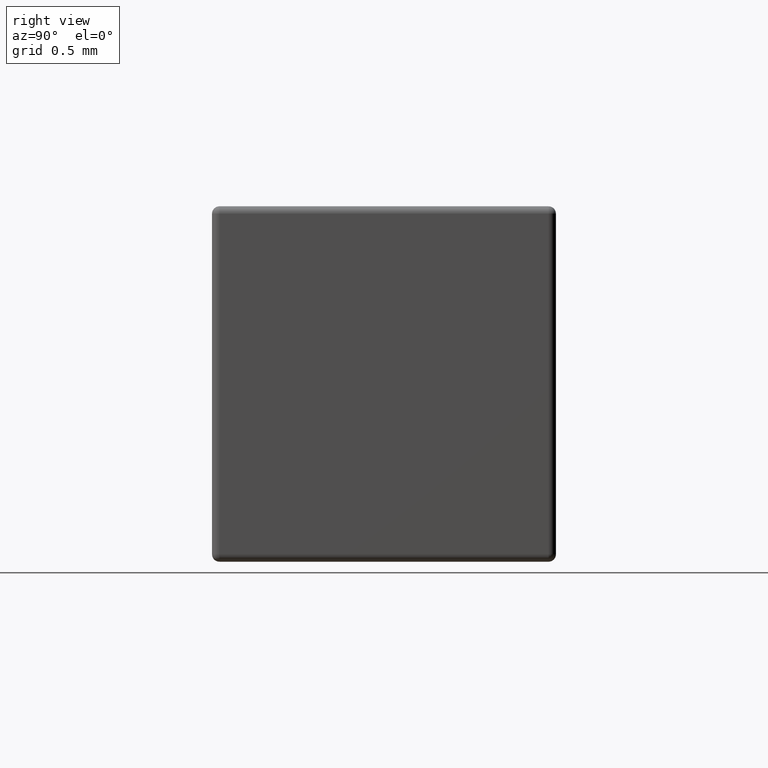
[diagram: clean part render]
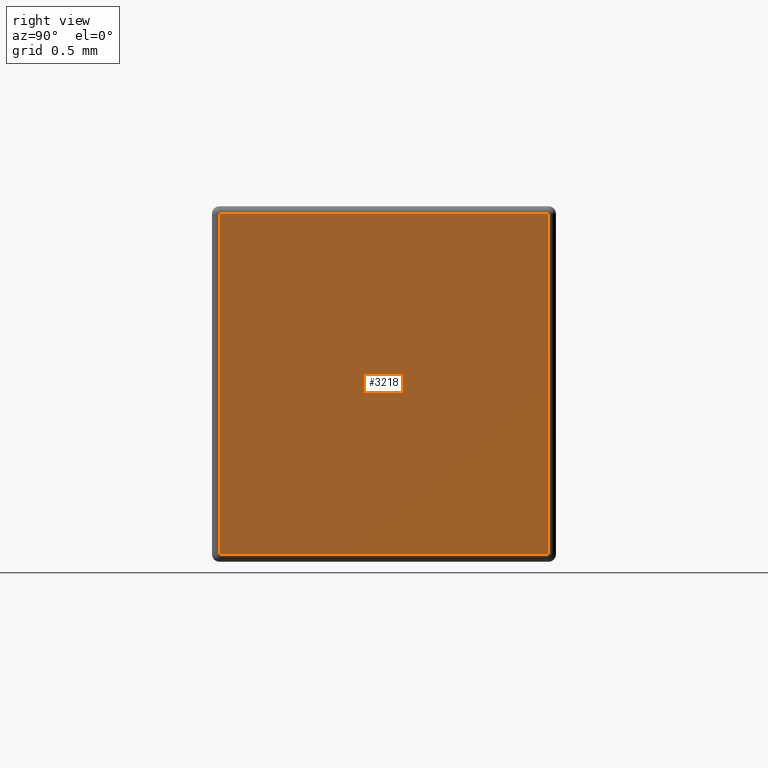
[diagram: same view with one face highlighted and labeled with its STEP entity id]
A machine part, right view. The second image highlights one B-rep face of the part: STEP entity #3218.
In plain terms, the highlighted planar face has unit normal (-1, 0, 0).
Its self-contained STEP definition (entity closure, byte-faithful):
#22 = VERTEX_POINT ( 'NONE', #3734 ) ;
#178 = CARTESIAN_POINT ( 'NONE',  ( 2.350000000000000089, 0.000000000000000000, -1.517759999999999998 ) ) ;
#223 = CARTESIAN_POINT ( 'NONE',  ( 2.350000000000000089, 1.467759999999999954, -1.517759999999999998 ) ) ;
#225 = ORIENTED_EDGE ( 'NONE', *, *, #3873, .T. ) ;
#645 = CARTESIAN_POINT ( 'NONE',  ( 2.350000000000000089, 0.03223999999999999089, 0.000000000000000000 ) ) ;
#676 = CARTESIAN_POINT ( 'NONE',  ( 2.350000000000000089, 1.467759999999999954, -0.03223999999999999783 ) ) ;
#719 = CARTESIAN_POINT ( 'NONE',  ( 2.350000000000000089, 1.467759999999999954, 0.000000000000000000 ) ) ;
#979 = DIRECTION ( 'NONE',  ( 0.000000000000000000, -1.000000000000000000, 0.000000000000000000 ) ) ;
#1028 = VERTEX_POINT ( 'NONE', #676 ) ;
#1631 = DIRECTION ( 'NONE',  ( 0.000000000000000000, 0.000000000000000000, 1.000000000000000000 ) ) ;
#1683 = CARTESIAN_POINT ( 'NONE',  ( 2.350000000000000089, 0.000000000000000000, 0.000000000000000000 ) ) ;
#1989 = LINE ( 'NONE', #178, #3854 ) ;
#1995 = EDGE_CURVE ( 'NONE', #1028, #22, #2365, .T. ) ;
#2045 = DIRECTION ( 'NONE',  ( 0.000000000000000000, 1.000000000000000000, -0.000000000000000000 ) ) ;
#2093 = VECTOR ( 'NONE', #2149, 1000.000000000000000 ) ;
#2149 = DIRECTION ( 'NONE',  ( 0.000000000000000000, 0.000000000000000000, 1.000000000000000000 ) ) ;
#2178 = EDGE_CURVE ( 'NONE', #22, #2830, #2194, .T. ) ;
#2194 = LINE ( 'NONE', #645, #2805 ) ;
#2236 = PLANE ( 'NONE',  #3487 ) ;
#2365 = LINE ( 'NONE', #2782, #3098 ) ;
#2379 = EDGE_CURVE ( 'NONE', #2830, #3323, #1989, .T. ) ;
#2576 = DIRECTION ( 'NONE',  ( 0.000000000000000000, 0.000000000000000000, -1.000000000000000000 ) ) ;
#2599 = EDGE_LOOP ( 'NONE', ( #4559, #3711, #225, #3952 ) ) ;
#2782 = CARTESIAN_POINT ( 'NONE',  ( 2.350000000000000089, 0.000000000000000000, -0.03223999999999999783 ) ) ;
#2805 = VECTOR ( 'NONE', #2576, 1000.000000000000000 ) ;
#2830 = VERTEX_POINT ( 'NONE', #3708 ) ;
#3098 = VECTOR ( 'NONE', #979, 1000.000000000000000 ) ;
#3218 = ADVANCED_FACE ( 'NONE', ( #4474 ), #2236, .F. ) ;
#3323 = VERTEX_POINT ( 'NONE', #223 ) ;
#3487 = AXIS2_PLACEMENT_3D ( 'NONE', #1683, #4159, #1631 ) ;
#3708 = CARTESIAN_POINT ( 'NONE',  ( 2.350000000000000089, 0.03223999999999999089, -1.517759999999999998 ) ) ;
#3711 = ORIENTED_EDGE ( 'NONE', *, *, #2379, .T. ) ;
#3734 = CARTESIAN_POINT ( 'NONE',  ( 2.350000000000000089, 0.03223999999999999089, -0.03223999999999999783 ) ) ;
#3854 = VECTOR ( 'NONE', #2045, 1000.000000000000000 ) ;
#3873 = EDGE_CURVE ( 'NONE', #3323, #1028, #3956, .T. ) ;
#3952 = ORIENTED_EDGE ( 'NONE', *, *, #1995, .T. ) ;
#3956 = LINE ( 'NONE', #719, #2093 ) ;
#4159 = DIRECTION ( 'NONE',  ( -1.000000000000000000, 0.000000000000000000, 0.000000000000000000 ) ) ;
#4474 = FACE_OUTER_BOUND ( 'NONE', #2599, .T. ) ;
#4559 = ORIENTED_EDGE ( 'NONE', *, *, #2178, .T. ) ;